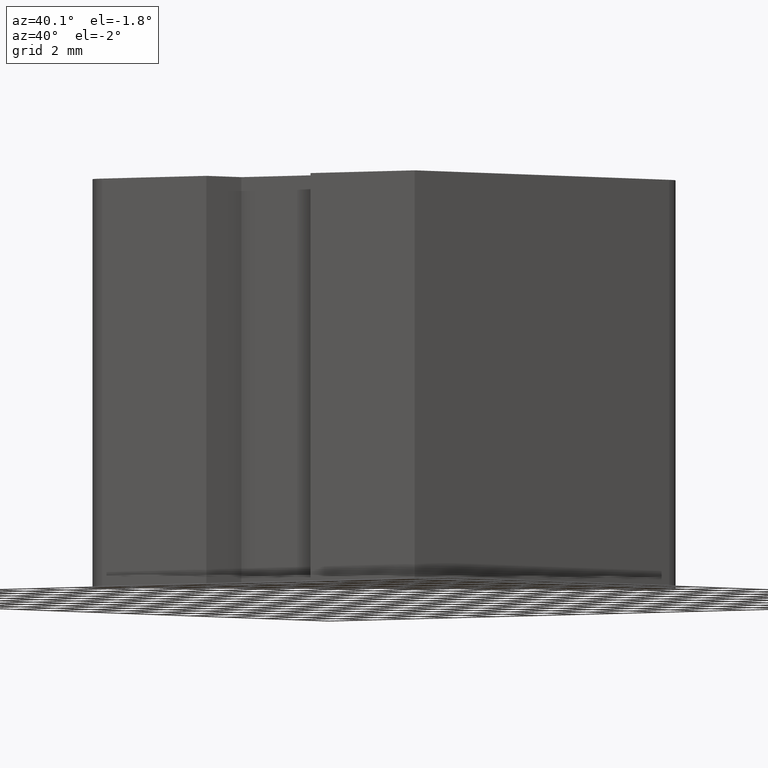
[diagram: clean part render]
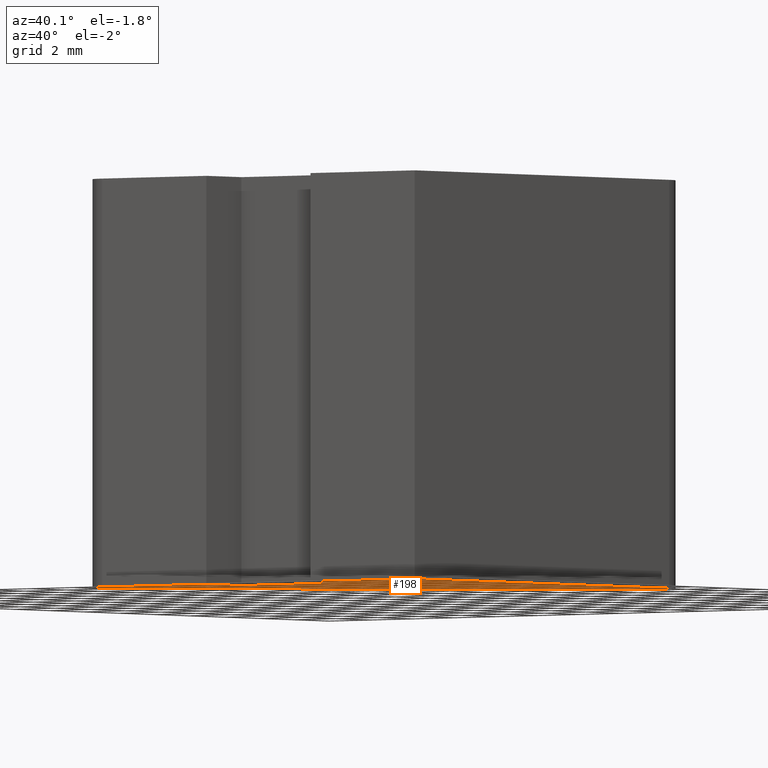
[diagram: same view with one face highlighted and labeled with its STEP entity id]
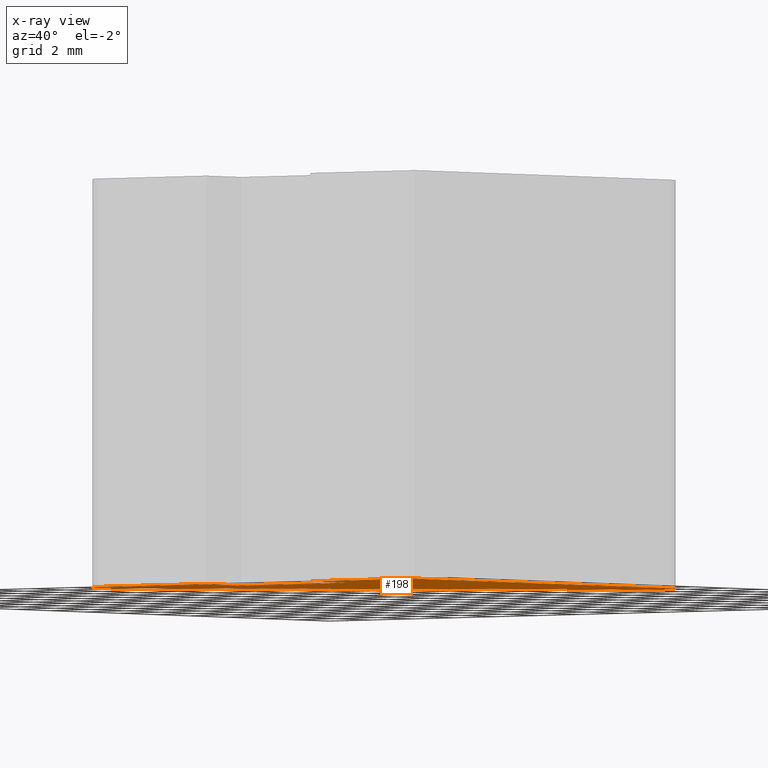
[diagram: x-ray of the same camera — body ghosted, the highlighted face saturated]
A machine part, auxiliary view. The second image highlights one B-rep face of the part: STEP entity #198.
The next image is the same camera in x-ray: the body ghosted, the highlighted face saturated — about 0% of this face is hidden behind the body in this view.
In plain terms, the highlighted planar face has unit normal (0, 0, 1).
Its self-contained STEP definition (entity closure, byte-faithful):
#18=FACE_OUTER_BOUND('',#29,.T.);
#29=EDGE_LOOP('',(#135,#136,#137,#138,#139,#140,#141,#142,#143));
#40=CIRCLE('',#233,1.);
#41=CIRCLE('',#234,1.);
#44=LINE('',#306,#67);
#45=LINE('',#308,#68);
#46=LINE('',#310,#69);
#47=LINE('',#312,#70);
#48=LINE('',#314,#71);
#49=LINE('',#316,#72);
#50=LINE('',#320,#73);
#67=VECTOR('',#251,10.);
#68=VECTOR('',#252,10.);
#69=VECTOR('',#253,10.);
#70=VECTOR('',#254,10.);
#71=VECTOR('',#255,10.);
#72=VECTOR('',#256,10.);
#73=VECTOR('',#259,10.);
#90=VERTEX_POINT('',#304);
#91=VERTEX_POINT('',#305);
#92=VERTEX_POINT('',#307);
#93=VERTEX_POINT('',#309);
#94=VERTEX_POINT('',#311);
#95=VERTEX_POINT('',#313);
#96=VERTEX_POINT('',#315);
#97=VERTEX_POINT('',#317);
#98=VERTEX_POINT('',#319);
#108=EDGE_CURVE('',#90,#91,#44,.T.);
#109=EDGE_CURVE('',#92,#90,#45,.T.);
#110=EDGE_CURVE('',#93,#92,#46,.T.);
#111=EDGE_CURVE('',#94,#93,#47,.T.);
#112=EDGE_CURVE('',#95,#94,#48,.T.);
#113=EDGE_CURVE('',#96,#95,#49,.T.);
#114=EDGE_CURVE('',#97,#96,#40,.T.);
#115=EDGE_CURVE('',#98,#97,#50,.T.);
#116=EDGE_CURVE('',#91,#98,#41,.T.);
#135=ORIENTED_EDGE('',*,*,#108,.F.);
#136=ORIENTED_EDGE('',*,*,#109,.F.);
#137=ORIENTED_EDGE('',*,*,#110,.F.);
#138=ORIENTED_EDGE('',*,*,#111,.F.);
#139=ORIENTED_EDGE('',*,*,#112,.F.);
#140=ORIENTED_EDGE('',*,*,#113,.F.);
#141=ORIENTED_EDGE('',*,*,#114,.F.);
#142=ORIENTED_EDGE('',*,*,#115,.F.);
#143=ORIENTED_EDGE('',*,*,#116,.F.);
#189=PLANE('',#232);
#198=ADVANCED_FACE('',(#18),#189,.F.);
#232=AXIS2_PLACEMENT_3D('',#303,#249,#250);
#233=AXIS2_PLACEMENT_3D('',#318,#257,#258);
#234=AXIS2_PLACEMENT_3D('',#321,#260,#261);
#249=DIRECTION('center_axis',(0.,0.,1.));
#250=DIRECTION('ref_axis',(1.,0.,0.));
#251=DIRECTION('',(-3.04009397021587E-16,1.,0.));
#252=DIRECTION('',(1.,0.,0.));
#253=DIRECTION('',(0.,-1.,0.));
#254=DIRECTION('',(1.,1.11022302462516E-16,0.));
#255=DIRECTION('',(0.,1.,0.));
#256=DIRECTION('',(1.,1.09999327305771E-16,0.));
#257=DIRECTION('center_axis',(0.,0.,1.));
#258=DIRECTION('ref_axis',(0.694135570584232,-0.719844295420685,0.));
#259=DIRECTION('',(-0.719844295420685,-0.694135570584232,0.));
#260=DIRECTION('center_axis',(0.,0.,1.));
#261=DIRECTION('ref_axis',(-1.,0.,0.));
#303=CARTESIAN_POINT('Origin',(-6.07845381438682,5.56838606184913,-7.5));
#304=CARTESIAN_POINT('',(5.65713715951632E-15,0.,-7.5));
#305=CARTESIAN_POINT('',(1.2490009027033E-15,14.5,-7.5));
#306=CARTESIAN_POINT('',(1.2490009027033E-15,14.5,-7.5));
#307=CARTESIAN_POINT('',(-5.,0.,-7.5));
#308=CARTESIAN_POINT('',(5.65713715951632E-15,0.,-7.5));
#309=CARTESIAN_POINT('',(-5.,2.,-7.5));
#310=CARTESIAN_POINT('',(-5.,0.,-7.5));
#311=CARTESIAN_POINT('',(-10.,2.,-7.5));
#312=CARTESIAN_POINT('',(-5.,2.,-7.5));
#313=CARTESIAN_POINT('',(-10.,2.21533117346659E-15,-7.5));
#314=CARTESIAN_POINT('',(-10.,2.,-7.5));
#315=CARTESIAN_POINT('',(-15.,1.66533453693773E-15,-7.5));
#316=CARTESIAN_POINT('',(-10.,2.21533117346659E-15,-7.5));
#317=CARTESIAN_POINT('',(-15.6941355705842,1.71984429542069,-7.5));
#318=CARTESIAN_POINT('Origin',(-15.,1.,-7.5));
#319=CARTESIAN_POINT('',(-1.69413557058423,15.2198442954207,-7.5));
#320=CARTESIAN_POINT('',(-15.6941355705842,1.71984429542069,-7.5));
#321=CARTESIAN_POINT('Origin',(-1.,14.5,-7.5));